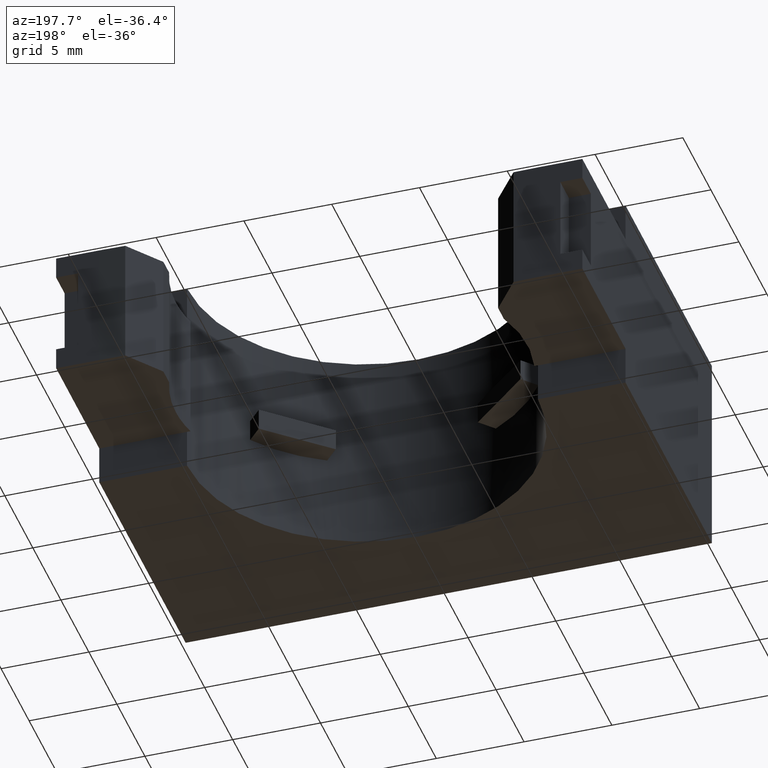
[diagram: clean part render]
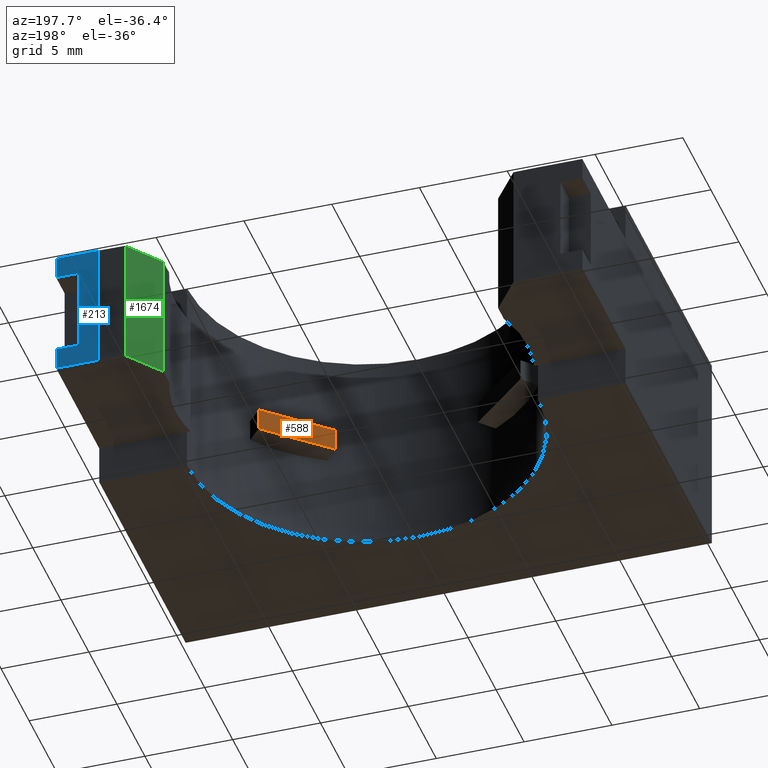
[diagram: same view with three faces highlighted in distinct colors, each labeled with its STEP entity id]
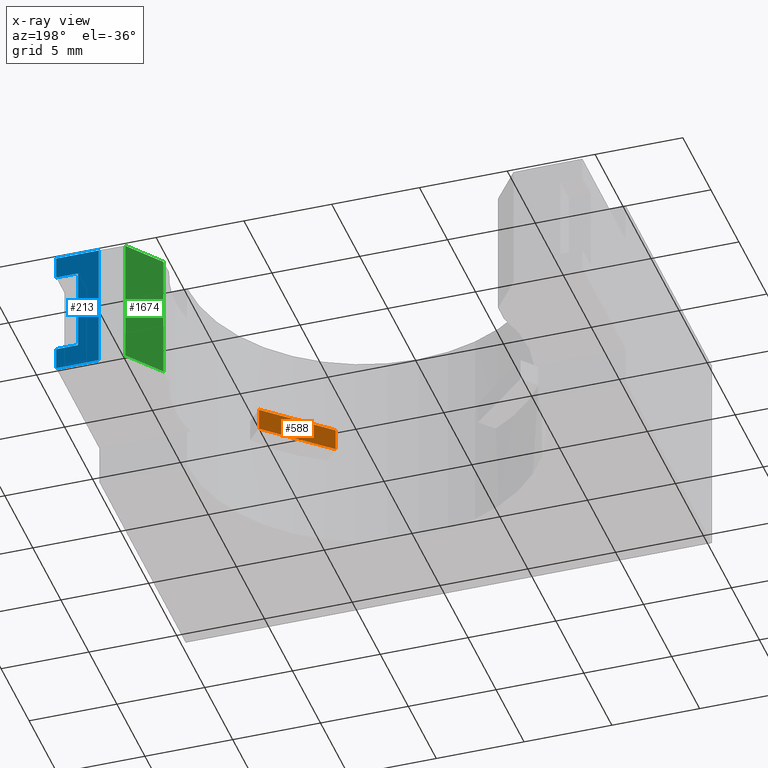
[diagram: x-ray of the same camera — body ghosted, the three highlighted faces saturated]
A machine part, auxiliary view with three faces highlighted in distinct colors.
The next image is the same camera in x-ray (body ghosted, the three faces saturated) — at least one of them is partly hidden behind the body in this view.
Their STEP definitions:

[orange] entity #588 — the highlighted planar face has unit normal (0.6691, -0.7431, -0).
#583 = ORIENTED_EDGE ( 'NONE', *, *, #1691, .T. ) ;
#588 = ADVANCED_FACE ( 'NONE', ( #1321 ), #1320, .F. ) ;
#589 = VERTEX_POINT ( 'NONE', #1315 ) ;
#592 = VERTEX_POINT ( 'NONE', #1314 ) ;
#593 = EDGE_CURVE ( 'NONE', #592, #589, #1313, .T. ) ;
#594 = EDGE_LOOP ( 'NONE', ( #583, #604, #614, #1663 ) ) ;
#602 = VERTEX_POINT ( 'NONE', #1303 ) ;
#604 = ORIENTED_EDGE ( 'NONE', *, *, #616, .F. ) ;
#614 = ORIENTED_EDGE ( 'NONE', *, *, #1646, .F. ) ;
#616 = EDGE_CURVE ( 'NONE', #602, #1728, #1341, .T. ) ;
#1303 = CARTESIAN_POINT ( 'NONE',  ( 0.2934284184901820300, -0.03940436834602942900, 0.2099999999999999900 ) ) ;
#1310 = DIRECTION ( 'NONE',  ( -0.0000000000000000000, -8.326672684688672800E-017, 1.000000000000000000 ) ) ;
#1311 = VECTOR ( 'NONE', #1310, 39.37007874015748100 ) ;
#1312 = CARTESIAN_POINT ( 'NONE',  ( 0.1593527062269750300, -0.1601266819099469700, 0.2099999999999999900 ) ) ;
#1313 = LINE ( 'NONE', #1312, #1311 ) ;
#1314 = CARTESIAN_POINT ( 'NONE',  ( 0.1593527062269750300, -0.1601266819099469700, 0.2099999999999999900 ) ) ;
#1315 = CARTESIAN_POINT ( 'NONE',  ( 0.1593527062269750300, -0.1601266819099469700, 0.2600000000000000100 ) ) ;
#1316 = DIRECTION ( 'NONE',  ( 0.7431448254773597200, 0.6691306063588964300, 0.0000000000000000000 ) ) ;
#1317 = DIRECTION ( 'NONE',  ( 0.6691306063588965400, -0.7431448254773598300, -6.187923719070066400E-017 ) ) ;
#1318 = CARTESIAN_POINT ( 'NONE',  ( 0.1593527062269750300, -0.1601266819099469700, 0.2099999999999999900 ) ) ;
#1319 = AXIS2_PLACEMENT_3D ( 'NONE', #1318, #1317, #1316 ) ;
#1320 = PLANE ( 'NONE',  #1319 ) ;
#1321 = FACE_OUTER_BOUND ( 'NONE', #594, .T. ) ;
#1335 = DIRECTION ( 'NONE',  ( -0.0000000000000000000, -8.326672684688672800E-017, 1.000000000000000000 ) ) ;
#1336 = VECTOR ( 'NONE', #1335, 39.37007874015748100 ) ;
#1337 = CARTESIAN_POINT ( 'NONE',  ( 0.2934284184901820300, -0.03940436834602942900, 0.2099999999999999900 ) ) ;
#1341 = LINE ( 'NONE', #1337, #1336 ) ;
#1499 = CARTESIAN_POINT ( 'NONE',  ( 0.1593527062269750300, -0.1601266819099469700, 0.2099999999999999900 ) ) ;
#1500 = LINE ( 'NONE', #1499, #1538 ) ;
#1512 = DIRECTION ( 'NONE',  ( 0.7431448254773597200, 0.6691306063588964300, 0.0000000000000000000 ) ) ;
#1513 = VECTOR ( 'NONE', #1512, 39.37007874015748900 ) ;
#1514 = CARTESIAN_POINT ( 'NONE',  ( 0.1593527062269750300, -0.1601266819099469700, 0.2600000000000000100 ) ) ;
#1530 = LINE ( 'NONE', #1514, #1513 ) ;
#1537 = DIRECTION ( 'NONE',  ( 0.7431448254773597200, 0.6691306063588964300, 0.0000000000000000000 ) ) ;
#1538 = VECTOR ( 'NONE', #1537, 39.37007874015748900 ) ;
#1541 = CARTESIAN_POINT ( 'NONE',  ( 0.2934284184901820300, -0.03940436834602942900, 0.2600000000000000100 ) ) ;
#1646 = EDGE_CURVE ( 'NONE', #592, #602, #1500, .T. ) ;
#1663 = ORIENTED_EDGE ( 'NONE', *, *, #593, .T. ) ;
#1691 = EDGE_CURVE ( 'NONE', #589, #1728, #1530, .T. ) ;
#1728 = VERTEX_POINT ( 'NONE', #1541 ) ;

[blue] entity #213 — the highlighted planar face has unit normal (-0, -1, 0).
#32 = ORIENTED_EDGE ( 'NONE', *, *, #336, .T. ) ;
#189 = VERTEX_POINT ( 'NONE', #832 ) ;
#199 = ORIENTED_EDGE ( 'NONE', *, *, #236, .T. ) ;
#200 = ORIENTED_EDGE ( 'NONE', *, *, #215, .F. ) ;
#201 = EDGE_LOOP ( 'NONE', ( #202, #203, #225, #228, #199, #200, #240, #32 ) ) ;
#202 = ORIENTED_EDGE ( 'NONE', *, *, #214, .T. ) ;
#203 = ORIENTED_EDGE ( 'NONE', *, *, #242, .F. ) ;
#213 = ADVANCED_FACE ( 'NONE', ( #894 ), #887, .F. ) ;
#214 = EDGE_CURVE ( 'NONE', #189, #239, #919, .T. ) ;
#215 = EDGE_CURVE ( 'NONE', #216, #234, #880, .T. ) ;
#216 = VERTEX_POINT ( 'NONE', #876 ) ;
#217 = VERTEX_POINT ( 'NONE', #875 ) ;
#224 = VERTEX_POINT ( 'NONE', #908 ) ;
#225 = ORIENTED_EDGE ( 'NONE', *, *, #226, .F. ) ;
#226 = EDGE_CURVE ( 'NONE', #227, #224, #928, .T. ) ;
#227 = VERTEX_POINT ( 'NONE', #924 ) ;
#228 = ORIENTED_EDGE ( 'NONE', *, *, #229, .F. ) ;
#229 = EDGE_CURVE ( 'NONE', #237, #227, #841, .T. ) ;
#234 = VERTEX_POINT ( 'NONE', #847 ) ;
#236 = EDGE_CURVE ( 'NONE', #237, #234, #965, .T. ) ;
#237 = VERTEX_POINT ( 'NONE', #961 ) ;
#239 = VERTEX_POINT ( 'NONE', #960 ) ;
#240 = ORIENTED_EDGE ( 'NONE', *, *, #241, .T. ) ;
#241 = EDGE_CURVE ( 'NONE', #216, #217, #959, .T. ) ;
#242 = EDGE_CURVE ( 'NONE', #224, #239, #955, .T. ) ;
#336 = EDGE_CURVE ( 'NONE', #217, #189, #1131, .T. ) ;
#832 = CARTESIAN_POINT ( 'NONE',  ( 0.5900000000000004100, 0.4550000000000001800, 0.3804500000000002900 ) ) ;
#838 = DIRECTION ( 'NONE',  ( -1.000000000000000000, 0.0000000000000000000, 6.910517263535858200E-015 ) ) ;
#839 = VECTOR ( 'NONE', #838, 39.37007874015748100 ) ;
#840 = CARTESIAN_POINT ( 'NONE',  ( 0.5900000000000003000, 0.4550000000000002900, 0.1397749999999994600 ) ) ;
#841 = LINE ( 'NONE', #840, #839 ) ;
#847 = CARTESIAN_POINT ( 'NONE',  ( 0.5900000000000004100, 0.4550000000000001800, 0.08954999999999976900 ) ) ;
#875 = CARTESIAN_POINT ( 'NONE',  ( 0.4943750000005889800, 0.4550000000000054000, 0.3804500000000002900 ) ) ;
#876 = CARTESIAN_POINT ( 'NONE',  ( 0.4943750000000004000, 0.4550000000000001800, 0.08954999999999976900 ) ) ;
#877 = DIRECTION ( 'NONE',  ( 1.000000000000000000, -0.0000000000000000000, -0.0000000000000000000 ) ) ;
#878 = VECTOR ( 'NONE', #877, 39.37007874015748100 ) ;
#879 = CARTESIAN_POINT ( 'NONE',  ( -0.5899999999999997500, 0.4550000000000001800, 0.08954999999999976900 ) ) ;
#880 = LINE ( 'NONE', #879, #878 ) ;
#887 = PLANE ( 'NONE',  #923 ) ;
#894 = FACE_OUTER_BOUND ( 'NONE', #201, .T. ) ;
#897 = DIRECTION ( 'NONE',  ( -0.0000000000000000000, -0.0000000000000000000, -1.000000000000000000 ) ) ;
#898 = VECTOR ( 'NONE', #897, 39.37007874015748100 ) ;
#899 = CARTESIAN_POINT ( 'NONE',  ( 0.5899999999999998600, 0.4550000000000001800, 0.4699999999999999700 ) ) ;
#908 = CARTESIAN_POINT ( 'NONE',  ( 0.5405853200005889000, 0.4550000000000002900, 0.3302250000000000500 ) ) ;
#919 = LINE ( 'NONE', #899, #898 ) ;
#920 = DIRECTION ( 'NONE',  ( 1.000000000000000000, -1.157562709179773100E-016, 0.0000000000000000000 ) ) ;
#921 = DIRECTION ( 'NONE',  ( -1.157562709179773100E-016, -1.000000000000000000, 0.0000000000000000000 ) ) ;
#922 = CARTESIAN_POINT ( 'NONE',  ( -0.5899999999999997500, 0.4550000000000003500, 0.4699999999999999700 ) ) ;
#923 = AXIS2_PLACEMENT_3D ( 'NONE', #922, #921, #920 ) ;
#924 = CARTESIAN_POINT ( 'NONE',  ( 0.5405853200005889000, 0.4550000000000002900, 0.1397749999999998200 ) ) ;
#925 = DIRECTION ( 'NONE',  ( 0.0000000000000000000, 0.0000000000000000000, 1.000000000000000000 ) ) ;
#926 = VECTOR ( 'NONE', #925, 39.37007874015748100 ) ;
#927 = CARTESIAN_POINT ( 'NONE',  ( 0.5405853200005889000, 0.4550000000000002900, 0.1397749999999998200 ) ) ;
#928 = LINE ( 'NONE', #927, #926 ) ;
#951 = DIRECTION ( 'NONE',  ( 1.000000000000000000, -0.0000000000000000000, -0.0000000000000000000 ) ) ;
#952 = VECTOR ( 'NONE', #951, 39.37007874015748100 ) ;
#953 = CARTESIAN_POINT ( 'NONE',  ( 0.5900000000000004100, 0.4550000000000002900, 0.3302250000000000500 ) ) ;
#955 = LINE ( 'NONE', #953, #952 ) ;
#956 = DIRECTION ( 'NONE',  ( -0.0000000000000000000, -0.0000000000000000000, 1.000000000000000000 ) ) ;
#957 = VECTOR ( 'NONE', #956, 39.37007874015748100 ) ;
#958 = CARTESIAN_POINT ( 'NONE',  ( 0.4943750000000004000, 0.4550000000000001800, 0.0000000000000000000 ) ) ;
#959 = LINE ( 'NONE', #958, #957 ) ;
#960 = CARTESIAN_POINT ( 'NONE',  ( 0.5900000000000004100, 0.4550000000000002900, 0.3302250000000000500 ) ) ;
#961 = CARTESIAN_POINT ( 'NONE',  ( 0.5899999999999998600, 0.4550000000000001800, 0.1397749999999995900 ) ) ;
#962 = DIRECTION ( 'NONE',  ( -0.0000000000000000000, -0.0000000000000000000, -1.000000000000000000 ) ) ;
#963 = VECTOR ( 'NONE', #962, 39.37007874015748100 ) ;
#964 = CARTESIAN_POINT ( 'NONE',  ( 0.5899999999999998600, 0.4550000000000001800, 0.4699999999999999700 ) ) ;
#965 = LINE ( 'NONE', #964, #963 ) ;
#1128 = DIRECTION ( 'NONE',  ( 1.000000000000000000, -0.0000000000000000000, -0.0000000000000000000 ) ) ;
#1129 = VECTOR ( 'NONE', #1128, 39.37007874015748100 ) ;
#1130 = CARTESIAN_POINT ( 'NONE',  ( -0.5899999999999997500, 0.4550000000000001800, 0.3804500000000002900 ) ) ;
#1131 = LINE ( 'NONE', #1130, #1129 ) ;

[green] entity #1674 — the highlighted planar face has unit normal (0.8, -0.6, 0).
#288 = VERTEX_POINT ( 'NONE', #1036 ) ;
#296 = VERTEX_POINT ( 'NONE', #989 ) ;
#321 = EDGE_CURVE ( 'NONE', #288, #296, #1066, .T. ) ;
#326 = EDGE_CURVE ( 'NONE', #373, #296, #1080, .T. ) ;
#364 = EDGE_CURVE ( 'NONE', #365, #288, #1087, .T. ) ;
#365 = VERTEX_POINT ( 'NONE', #1083 ) ;
#373 = VERTEX_POINT ( 'NONE', #1106 ) ;
#392 = EDGE_CURVE ( 'NONE', #365, #373, #1142, .T. ) ;
#989 = CARTESIAN_POINT ( 'NONE',  ( 0.4353125000000003200, 0.4539665354330714700, 0.3804500000000001800 ) ) ;
#1036 = CARTESIAN_POINT ( 'NONE',  ( 0.3753125000000003300, 0.3739665354330712900, 0.3804500000000001800 ) ) ;
#1066 = LINE ( 'NONE', #1082, #1067 ) ;
#1067 = VECTOR ( 'NONE', #1079, 39.37007874015748900 ) ;
#1079 = DIRECTION ( 'NONE',  ( 0.5999999999999989800, 0.8000000000000007100, 0.0000000000000000000 ) ) ;
#1080 = LINE ( 'NONE', #1091, #1090 ) ;
#1082 = CARTESIAN_POINT ( 'NONE',  ( 0.3753125000000003300, 0.3739665354330712900, 0.3804500000000001800 ) ) ;
#1083 = CARTESIAN_POINT ( 'NONE',  ( 0.3753125000000003300, 0.3739665354330712900, 0.08954999999999972700 ) ) ;
#1084 = DIRECTION ( 'NONE',  ( -0.0000000000000000000, -0.0000000000000000000, 1.000000000000000000 ) ) ;
#1085 = VECTOR ( 'NONE', #1084, 39.37007874015748100 ) ;
#1086 = CARTESIAN_POINT ( 'NONE',  ( 0.3753125000000003300, 0.3739665354330712900, 0.0000000000000000000 ) ) ;
#1087 = LINE ( 'NONE', #1086, #1085 ) ;
#1089 = DIRECTION ( 'NONE',  ( -0.0000000000000000000, -0.0000000000000000000, 1.000000000000000000 ) ) ;
#1090 = VECTOR ( 'NONE', #1089, 39.37007874015748100 ) ;
#1091 = CARTESIAN_POINT ( 'NONE',  ( 0.4353125000000003200, 0.4539665354330714700, 0.0000000000000000000 ) ) ;
#1106 = CARTESIAN_POINT ( 'NONE',  ( 0.4353124999999999900, 0.4539665354330711400, 0.08954999999999976900 ) ) ;
#1139 = DIRECTION ( 'NONE',  ( 0.5999999999999988700, 0.8000000000000007100, 9.006092286805277800E-017 ) ) ;
#1140 = VECTOR ( 'NONE', #1139, 39.37007874015748900 ) ;
#1141 = CARTESIAN_POINT ( 'NONE',  ( 0.06669606299212738100, -0.03752204724409381700, 0.08954999999999971300 ) ) ;
#1142 = LINE ( 'NONE', #1141, #1140 ) ;
#1508 = CARTESIAN_POINT ( 'NONE',  ( 0.3753125000000003300, 0.3739665354330712900, 0.0000000000000000000 ) ) ;
#1509 = PLANE ( 'NONE',  #1531 ) ;
#1531 = AXIS2_PLACEMENT_3D ( 'NONE', #1508, #1533, #1532 ) ;
#1532 = DIRECTION ( 'NONE',  ( 0.5999999999999988700, 0.8000000000000007100, 0.0000000000000000000 ) ) ;
#1533 = DIRECTION ( 'NONE',  ( 0.8000000000000008200, -0.5999999999999989800, 0.0000000000000000000 ) ) ;
#1536 = FACE_OUTER_BOUND ( 'NONE', #1637, .T. ) ;
#1637 = EDGE_LOOP ( 'NONE', ( #1675, #1740, #1721, #1741 ) ) ;
#1674 = ADVANCED_FACE ( 'NONE', ( #1536 ), #1509, .F. ) ;
#1675 = ORIENTED_EDGE ( 'NONE', *, *, #364, .T. ) ;
#1721 = ORIENTED_EDGE ( 'NONE', *, *, #326, .F. ) ;
#1740 = ORIENTED_EDGE ( 'NONE', *, *, #321, .T. ) ;
#1741 = ORIENTED_EDGE ( 'NONE', *, *, #392, .F. ) ;